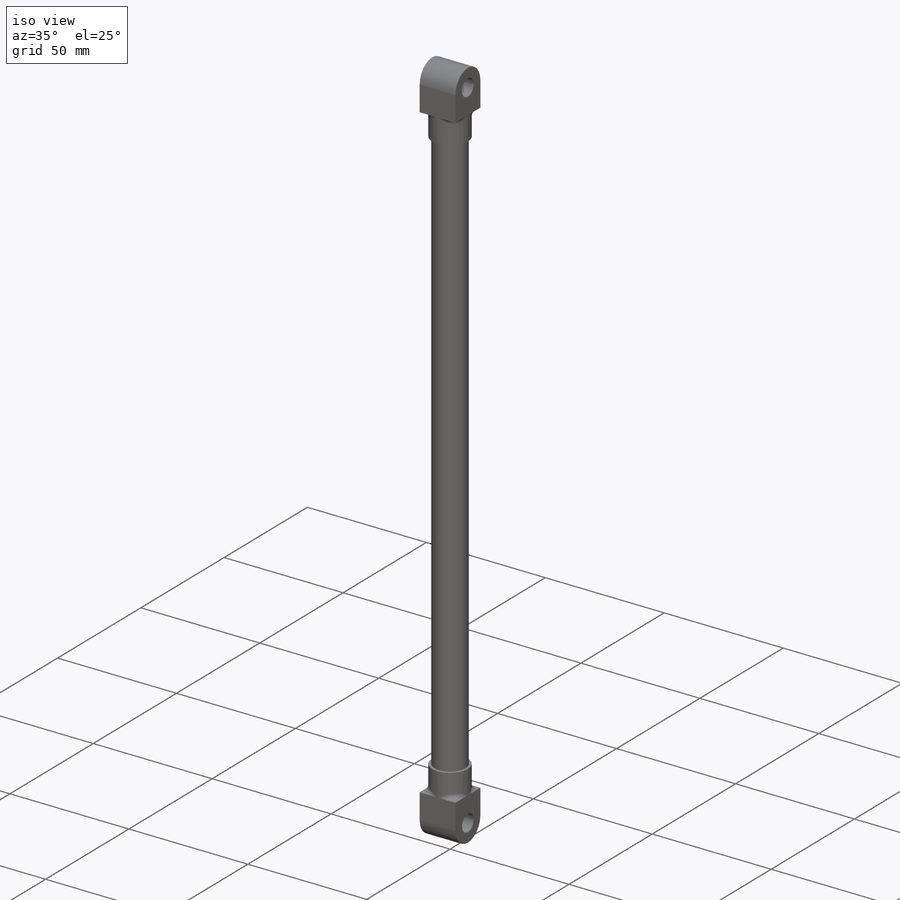
[diagram: iso view]
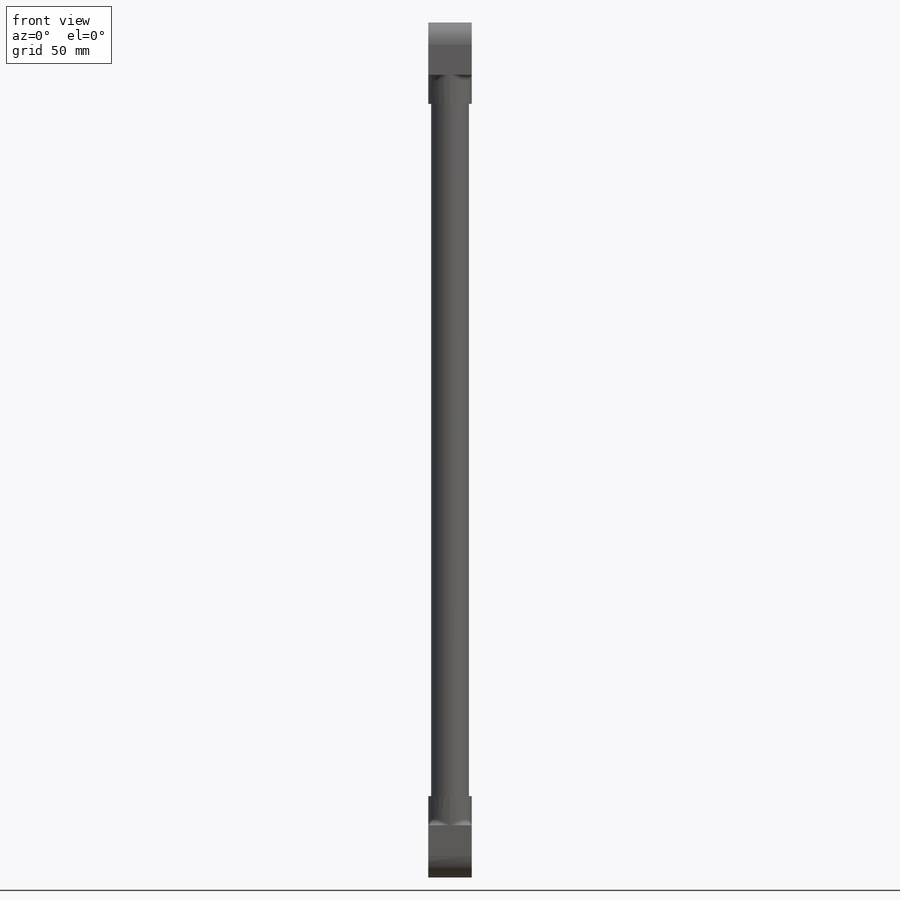
[diagram: front view]
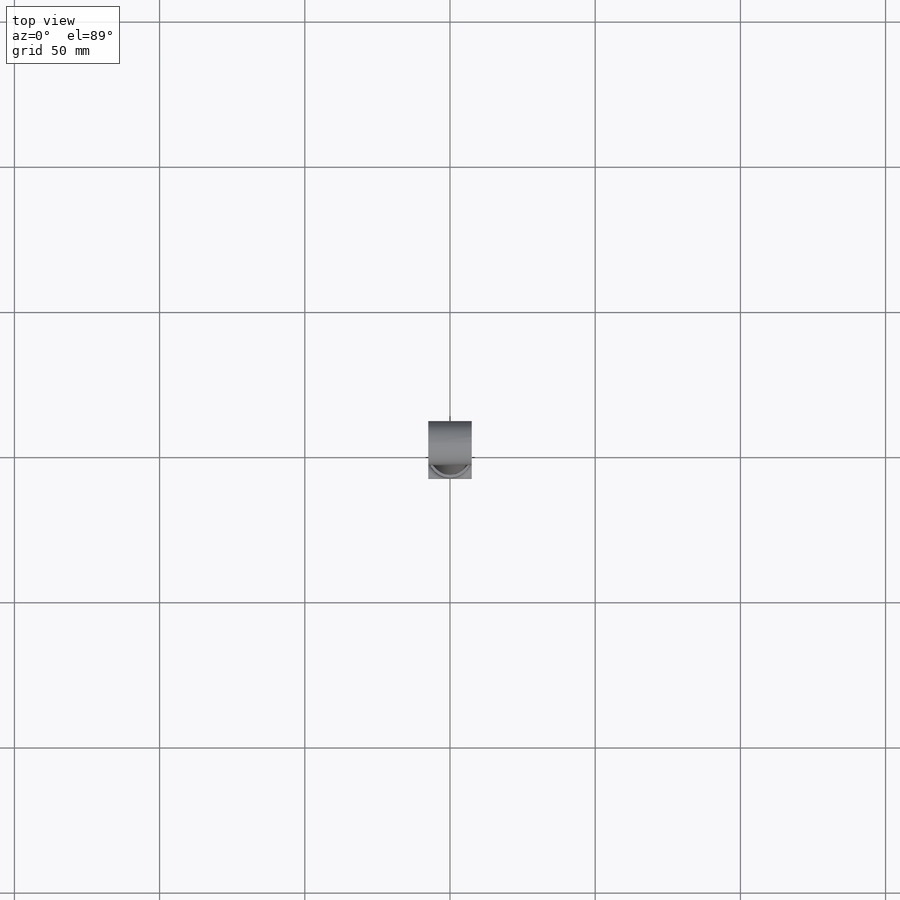
[diagram: top view]
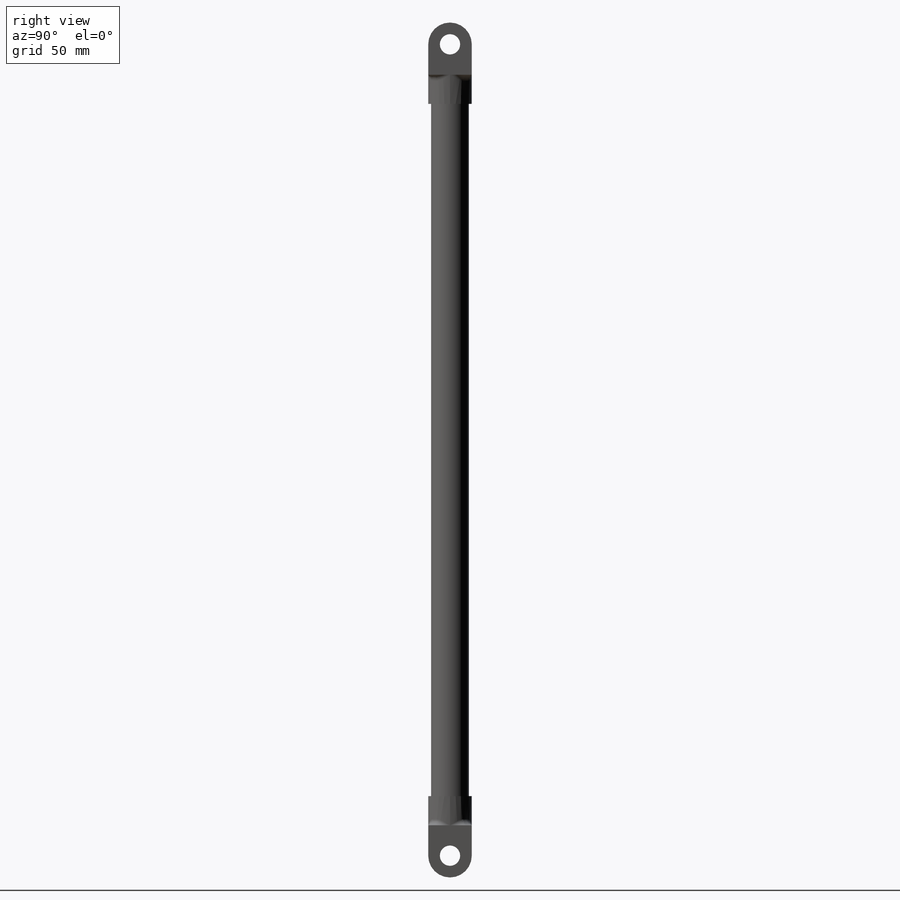
[diagram: right view]
SOLIDWORKS PART (.sldprt)
format: sldprt  version: not decoded by parser v0  size: 412,672 bytes
history: native  units: mm
features: sketch x4, extrude x3, fillet x3, mirror x2, material x1, cut_extrude x1 (+11 scaffold rows collapsed)
feature tree (25):
  scaffold x11  (default folders/planes/origin — collapsed)
  material  "Material <not specified>"
  sketch  "Sketch1"  dims[D1=13.0mm]
  extrude  "Boss-Extrude1"  Depth=119.2mm
  sketch  "Sketch2"  dims[D1=8.0mm]
  extrude  "Boss-Extrude2"  Depth=10mm
  sketch  "Sketch3"
  extrude  "Boss-Extrude3"  Depth=18mm
  fillet  "Fillet2"  Radius=7.5mm
  fillet  "Fillet3"  Radius=7.5mm
  sketch  "Sketch4"  dims[D1=~4.480207mm]
  cut_extrude  "Cut-Extrude1"  [1 undecoded]
  fillet  "Fillet5"  Radius=2mm
  mirror  "Mirror2"
  mirror  "Point2"
decode coverage: 9 of 13 modeling features carry decoded parameters
note: ~ marks probable driven/reference dimensions
note: 1 parameter value undecoded
note: suppression state not decoded; provenance and decode notes live in map.json
